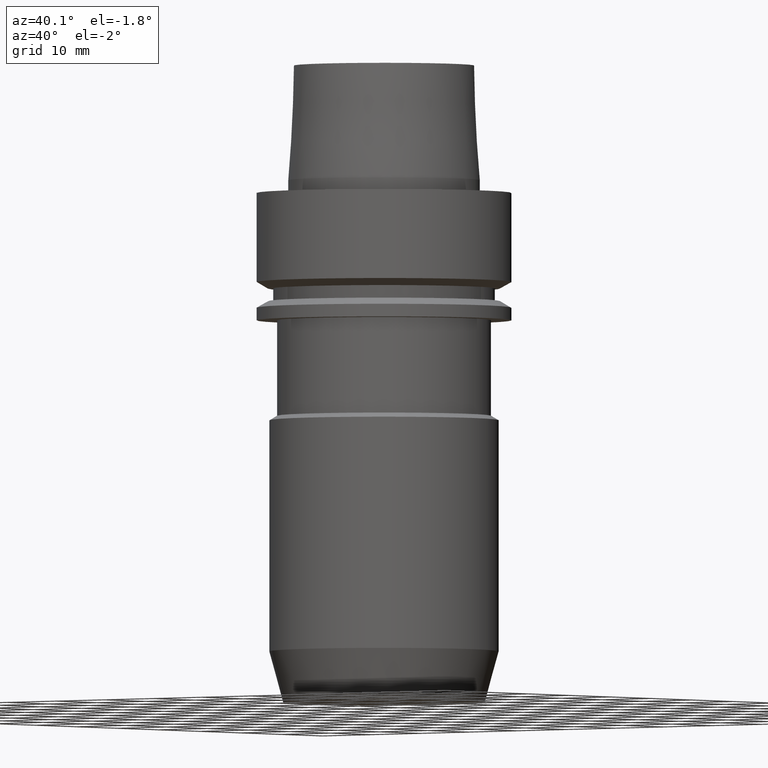
[diagram: clean part render]
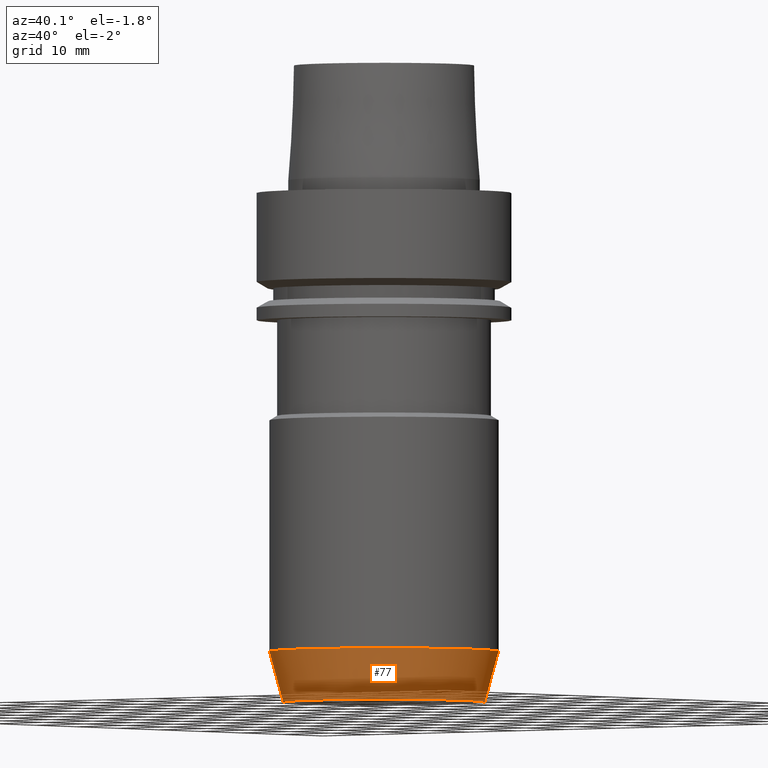
[diagram: same view with one face highlighted and labeled with its STEP entity id]
A machine part, auxiliary view. The second image highlights one B-rep face of the part: STEP entity #77.
In plain terms, the highlighted conical surface has half-angle 15 deg.
Its self-contained STEP definition (entity closure, byte-faithful):
#77=ADVANCED_FACE('',(#98,#99),#100,.T.);
#98=FACE_BOUND('',#147,.T.);
#99=FACE_BOUND('',#148,.T.);
#100=CONICAL_SURFACE('',#149,16.9282032322792,0.261799387022768);
#147=EDGE_LOOP('',(#200));
#148=EDGE_LOOP('',(#201));
#149=AXIS2_PLACEMENT_3D('',#202,#203,#204);
#200=ORIENTED_EDGE('',*,*,#277,.F.);
#201=ORIENTED_EDGE('',*,*,#276,.T.);
#202=CARTESIAN_POINT('',(4.65365783645719E-015,9.30731567291438E-015,-75.9999999950557));
#203=DIRECTION('',(-6.12323399573677E-017,-1.22464679914735E-016,1.0));
#204=DIRECTION('',(-1.23259516440783E-032,1.0,1.22464679914735E-016));
#276=EDGE_CURVE('',#294,#294,#295,.T.);
#277=EDGE_CURVE('',#296,#296,#297,.T.);
#294=VERTEX_POINT('',#326);
#295=CIRCLE('',#327,15.8564064645584);
#296=VERTEX_POINT('',#328);
#297=CIRCLE('',#329,18.0);
#326=CARTESIAN_POINT('',(4.89858719658941E-015,15.8564064645584,-80.0));
#327=AXIS2_PLACEMENT_3D('',#360,#361,#362);
#328=CARTESIAN_POINT('',(4.40872847632497E-015,18.0,-71.9999999901114));
#329=AXIS2_PLACEMENT_3D('',#363,#364,#365);
#360=CARTESIAN_POINT('',(4.89858719658941E-015,9.79717439317882E-015,-80.0));
#361=DIRECTION('',(-6.12323399573677E-017,-1.22464679914735E-016,1.0));
#362=DIRECTION('',(-1.23259516440783E-032,1.0,1.22464679914735E-016));
#363=CARTESIAN_POINT('',(4.40872847632497E-015,8.81745695264994E-015,-71.9999999901114));
#364=DIRECTION('',(-6.12323399573677E-017,-1.22464679914735E-016,1.0));
#365=DIRECTION('',(-1.23259516440783E-032,1.0,1.22464679914735E-016));